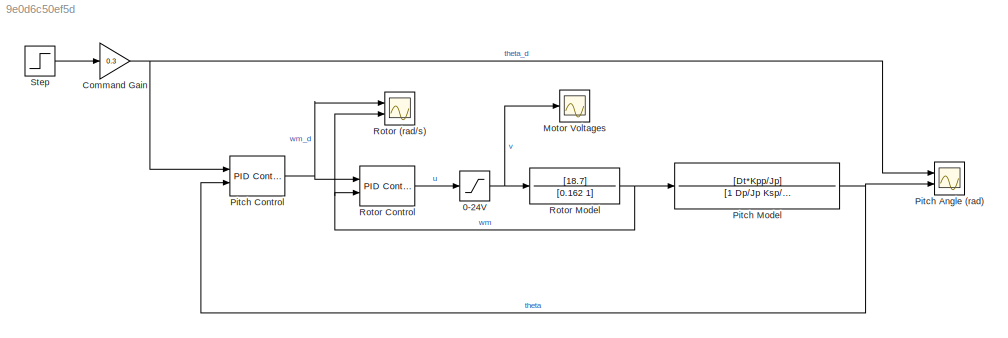
MODEL slx_9e0d6c50ef5d
KIND model
CONFIG AbsTol = auto
CONFIG EnableMultiTasking = off
CONFIG FixedStep = 0.002
CONFIG MaxStep = auto
CONFIG MinStep = auto
CONFIG RelTol = 1e-3
CONFIG SampleTimeConstraint = Unconstrained
CONFIG SolverName = ode4
CONFIG StartTime = 0.0
CONFIG StopTime = 10
BLOCK [Saturate] 0-24V
  UpperLimit = 24
BLOCK [Gain] Command Gain
  Gain = 0.3
BLOCK [Scope] Motor Voltages
  Floating = off
  NumInputPorts = 1
  Ports = [1]
  ScopeSpecificationString = Simulink.scopes.TimeScopeBlockCfg('CurrentConfiguration', extmgr.ConfigurationSet(extmgr.Configuration('Core','General UI',true),extmgr.Configuration('Core','Source UI',true),extmgr.Configuration('Sources','WiredSimulink',true,'DataLogging',true,'DataLoggingVariableName','DataPitchPIDSimVp','DataLoggingMaxPoints','20000','DataLoggingSaveFormat','StructureWithTime','DataLoggingDecimation','1','Data...<+1741ch>
BLOCK [Scope] Pitch Angle (rad)
  Floating = off
  NumInputPorts = 2
  Ports = [2]
  ScopeSpecificationString = Simulink.scopes.TimeScopeBlockCfg('CurrentConfiguration', extmgr.ConfigurationSet(extmgr.Configuration('Core','General UI',true),extmgr.Configuration('Core','Source UI',true),extmgr.Configuration('Sources','WiredSimulink',true,'DataLogging',true,'DataLoggingVariableName','DataPitchPIDSimTheta','DataLoggingSaveFormat','StructureWithTime'),extmgr.Configuration('Visuals','Time Domain',true,'Serialize...<+1499ch>
BLOCK [Reference] Pitch Control  REF=slpidlib/PID Controller (2DOF)
  Ports = [2, 1]
  SourceBlock = slpidlib/PID Controller (2DOF)
  SourceProductBaseCode = SL
  SourceType = PID 2dof
BLOCK [TransferFcn] Pitch Model
  Denominator = [1 Dp/Jp Ksp/Jp]
  Numerator = [Dt*Kpp/Jp]
BLOCK [Scope] Rotor (rad//s)
  Floating = off
  NumInputPorts = 2
  Ports = [2]
  ScopeSpecificationString = Simulink.scopes.TimeScopeBlockCfg('CurrentConfiguration', extmgr.ConfigurationSet(extmgr.Configuration('Core','General UI',true),extmgr.Configuration('Core','Source UI',true),extmgr.Configuration('Sources','WiredSimulink',true,'DataLoggingVariableName','DataPitchPIDSimRotor','DataLoggingMaxPoints','20000','DataLoggingSaveFormat','StructureWithTime','DataLoggingDecimation','1','DataLoggingDecimateD...<+1784ch>
BLOCK [Reference] Rotor Control  REF=slpidlib/PID Controller (2DOF)
  Ports = [2, 1]
  SourceBlock = slpidlib/PID Controller (2DOF)
  SourceProductBaseCode = SL
  SourceType = PID 2dof
BLOCK [TransferFcn] Rotor Model
  Denominator = [0.162 1]
  Numerator = [18.7]
BLOCK [Step] Step
  SampleTime = 0
NET 0-24V:1 -> Motor Voltages:1, Rotor Model:1
NET Command Gain:1 -> Pitch Angle (rad):1, Pitch Control:1
NET Pitch Control:1 -> Rotor (rad//s):1, Rotor Control:1
NET Pitch Model:1 -> Pitch Angle (rad):2, Pitch Control:2
LINE Rotor Control:1 -> 0-24V:1
NET Rotor Model:1 -> Pitch Model:1, Rotor (rad//s):2, Rotor Control:2
LINE Step:1 -> Command Gain:1
note: NET lines group one-source signal fan-out (src -> all destinations, sorted); 1:1 wires keep LINE
